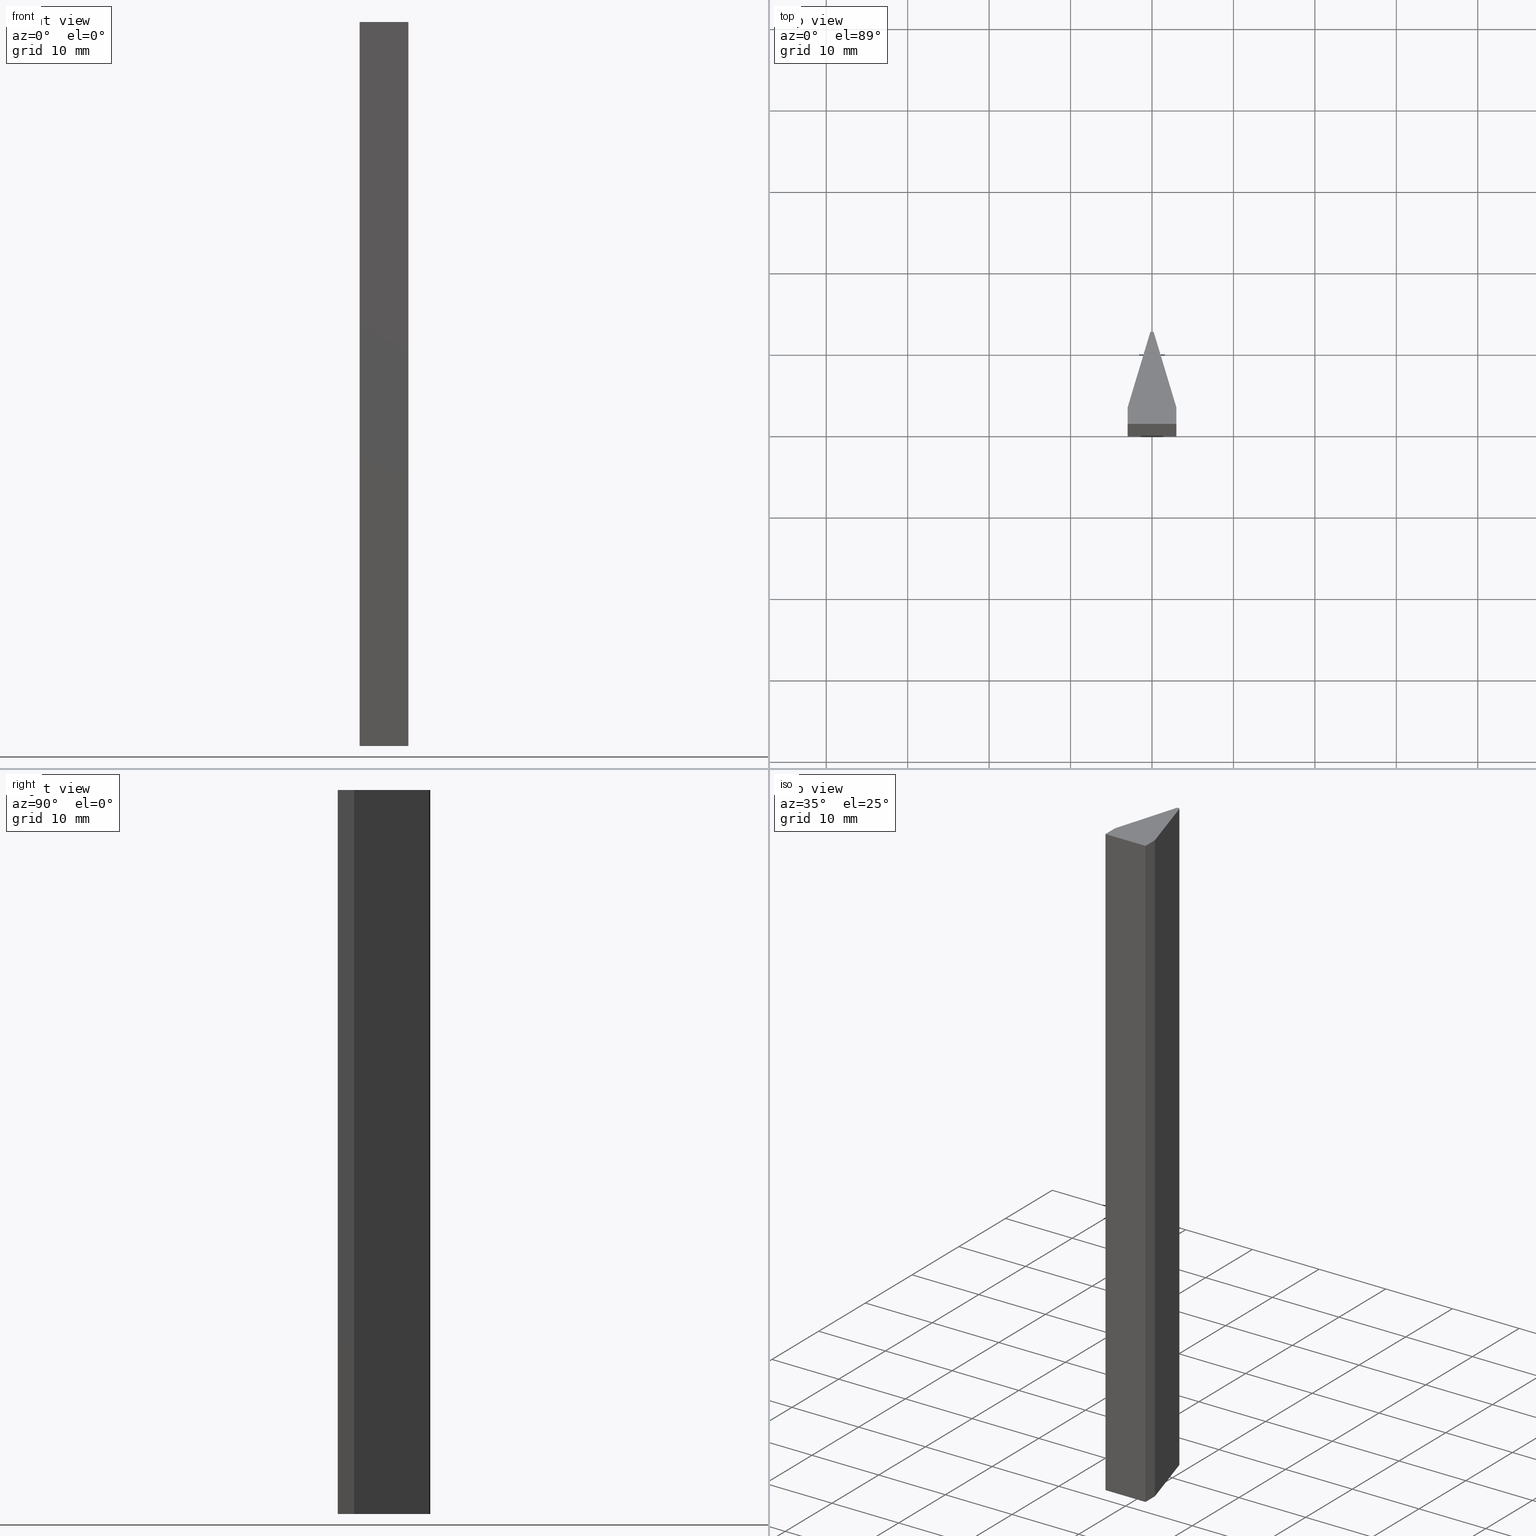
[diagram: canonical four-view strip — front | top / right | iso, engineering-drawing reading convention]
A machine part, canonical four-view strip (front | top / right | iso — engineering-drawing reading convention). The complete STEP part file that produces these views, byte-faithful:
ISO-10303-21;
HEADER;
/* Generated by software containing ST-Developer
 * from STEP Tools, Inc. (www.steptools.com) 
 */

FILE_DESCRIPTION(
/* description */ ('WKZ-0464'),
/* implementation_level */ '2;1');

FILE_NAME(
/* name */ 'O_3_01_06_07_00_WKZ-0464.stp',
/* time_stamp */ '2025-06-18T08:55:45+02:00',
/* author */ ('d.fischer'),
/* organization */ (''),
/* preprocessor_version */ 'ST-DEVELOPER v20',
/* originating_system */ 'Autodesk Inventor 2025',
/* authorisation */ '');

FILE_SCHEMA (('AUTOMOTIVE_DESIGN { 1 0 10303 214 3 1 1 }'));
ENDSEC;

DATA;
#10=MECHANICAL_DESIGN_GEOMETRIC_PRESENTATION_REPRESENTATION('',(#13),#260);
#11=SHAPE_REPRESENTATION_RELATIONSHIP('SRR','None',#267,#12);
#12=ADVANCED_BREP_SHAPE_REPRESENTATION('',(#14),#259);
#13=STYLED_ITEM('',(#276),#14);
#14=MANIFOLD_SOLID_BREP('Volumenk\X\F6rper1',#147);
#15=CYLINDRICAL_SURFACE('',#174,0.25);
#16=FACE_OUTER_BOUND('',#24,.T.);
#17=FACE_OUTER_BOUND('',#25,.T.);
#18=FACE_OUTER_BOUND('',#26,.T.);
#19=FACE_OUTER_BOUND('',#27,.T.);
#20=FACE_OUTER_BOUND('',#28,.T.);
#21=FACE_OUTER_BOUND('',#29,.T.);
#22=FACE_OUTER_BOUND('',#30,.T.);
#23=FACE_OUTER_BOUND('',#31,.T.);
#24=EDGE_LOOP('',(#96,#97,#98,#99,#100,#101));
#25=EDGE_LOOP('',(#102,#103,#104,#105));
#26=EDGE_LOOP('',(#106,#107,#108,#109));
#27=EDGE_LOOP('',(#110,#111,#112,#113));
#28=EDGE_LOOP('',(#114,#115,#116,#117));
#29=EDGE_LOOP('',(#118,#119,#120,#121));
#30=EDGE_LOOP('',(#122,#123,#124,#125));
#31=EDGE_LOOP('',(#126,#127,#128,#129,#130,#131));
#32=CIRCLE('',#171,0.25);
#33=CIRCLE('',#175,0.25);
#34=LINE('',#222,#50);
#35=LINE('',#224,#51);
#36=LINE('',#226,#52);
#37=LINE('',#230,#53);
#38=LINE('',#231,#54);
#39=LINE('',#234,#55);
#40=LINE('',#236,#56);
#41=LINE('',#237,#57);
#42=LINE('',#240,#58);
#43=LINE('',#241,#59);
#44=LINE('',#245,#60);
#45=LINE('',#248,#61);
#46=LINE('',#249,#62);
#47=LINE('',#252,#63);
#48=LINE('',#253,#64);
#49=LINE('',#255,#65);
#50=VECTOR('',#184,10.);
#51=VECTOR('',#185,10.);
#52=VECTOR('',#186,10.);
#53=VECTOR('',#189,10.);
#54=VECTOR('',#190,10.);
#55=VECTOR('',#193,10.);
#56=VECTOR('',#194,10.);
#57=VECTOR('',#195,10.);
#58=VECTOR('',#198,10.);
#59=VECTOR('',#199,10.);
#60=VECTOR('',#204,10.);
#61=VECTOR('',#207,10.);
#62=VECTOR('',#208,10.);
#63=VECTOR('',#211,10.);
#64=VECTOR('',#212,10.);
#65=VECTOR('',#215,10.);
#66=VERTEX_POINT('',#220);
#67=VERTEX_POINT('',#221);
#68=VERTEX_POINT('',#223);
#69=VERTEX_POINT('',#225);
#70=VERTEX_POINT('',#227);
#71=VERTEX_POINT('',#229);
#72=VERTEX_POINT('',#233);
#73=VERTEX_POINT('',#235);
#74=VERTEX_POINT('',#239);
#75=VERTEX_POINT('',#243);
#76=VERTEX_POINT('',#247);
#77=VERTEX_POINT('',#251);
#78=EDGE_CURVE('',#66,#67,#34,.T.);
#79=EDGE_CURVE('',#67,#68,#35,.T.);
#80=EDGE_CURVE('',#68,#69,#36,.T.);
#81=EDGE_CURVE('',#69,#70,#32,.T.);
#82=EDGE_CURVE('',#70,#71,#37,.T.);
#83=EDGE_CURVE('',#71,#66,#38,.T.);
#84=EDGE_CURVE('',#72,#67,#39,.T.);
#85=EDGE_CURVE('',#73,#72,#40,.T.);
#86=EDGE_CURVE('',#68,#73,#41,.T.);
#87=EDGE_CURVE('',#74,#73,#42,.T.);
#88=EDGE_CURVE('',#69,#74,#43,.T.);
#89=EDGE_CURVE('',#75,#74,#33,.T.);
#90=EDGE_CURVE('',#70,#75,#44,.T.);
#91=EDGE_CURVE('',#76,#75,#45,.T.);
#92=EDGE_CURVE('',#71,#76,#46,.T.);
#93=EDGE_CURVE('',#77,#76,#47,.T.);
#94=EDGE_CURVE('',#66,#77,#48,.T.);
#95=EDGE_CURVE('',#72,#77,#49,.T.);
#96=ORIENTED_EDGE('',*,*,#78,.T.);
#97=ORIENTED_EDGE('',*,*,#79,.T.);
#98=ORIENTED_EDGE('',*,*,#80,.T.);
#99=ORIENTED_EDGE('',*,*,#81,.T.);
#100=ORIENTED_EDGE('',*,*,#82,.T.);
#101=ORIENTED_EDGE('',*,*,#83,.T.);
#102=ORIENTED_EDGE('',*,*,#84,.F.);
#103=ORIENTED_EDGE('',*,*,#85,.F.);
#104=ORIENTED_EDGE('',*,*,#86,.F.);
#105=ORIENTED_EDGE('',*,*,#79,.F.);
#106=ORIENTED_EDGE('',*,*,#86,.T.);
#107=ORIENTED_EDGE('',*,*,#87,.F.);
#108=ORIENTED_EDGE('',*,*,#88,.F.);
#109=ORIENTED_EDGE('',*,*,#80,.F.);
#110=ORIENTED_EDGE('',*,*,#88,.T.);
#111=ORIENTED_EDGE('',*,*,#89,.F.);
#112=ORIENTED_EDGE('',*,*,#90,.F.);
#113=ORIENTED_EDGE('',*,*,#81,.F.);
#114=ORIENTED_EDGE('',*,*,#90,.T.);
#115=ORIENTED_EDGE('',*,*,#91,.F.);
#116=ORIENTED_EDGE('',*,*,#92,.F.);
#117=ORIENTED_EDGE('',*,*,#82,.F.);
#118=ORIENTED_EDGE('',*,*,#92,.T.);
#119=ORIENTED_EDGE('',*,*,#93,.F.);
#120=ORIENTED_EDGE('',*,*,#94,.F.);
#121=ORIENTED_EDGE('',*,*,#83,.F.);
#122=ORIENTED_EDGE('',*,*,#94,.T.);
#123=ORIENTED_EDGE('',*,*,#95,.F.);
#124=ORIENTED_EDGE('',*,*,#84,.T.);
#125=ORIENTED_EDGE('',*,*,#78,.F.);
#126=ORIENTED_EDGE('',*,*,#95,.T.);
#127=ORIENTED_EDGE('',*,*,#93,.T.);
#128=ORIENTED_EDGE('',*,*,#91,.T.);
#129=ORIENTED_EDGE('',*,*,#89,.T.);
#130=ORIENTED_EDGE('',*,*,#87,.T.);
#131=ORIENTED_EDGE('',*,*,#85,.T.);
#132=PLANE('',#170);
#133=PLANE('',#172);
#134=PLANE('',#173);
#135=PLANE('',#176);
#136=PLANE('',#177);
#137=PLANE('',#178);
#138=PLANE('',#179);
#139=ADVANCED_FACE('',(#16),#132,.F.);
#140=ADVANCED_FACE('',(#17),#133,.T.);
#141=ADVANCED_FACE('',(#18),#134,.T.);
#142=ADVANCED_FACE('',(#19),#15,.T.);
#143=ADVANCED_FACE('',(#20),#135,.T.);
#144=ADVANCED_FACE('',(#21),#136,.T.);
#145=ADVANCED_FACE('',(#22),#137,.T.);
#146=ADVANCED_FACE('',(#23),#138,.T.);
#147=CLOSED_SHELL('',(#139,#140,#141,#142,#143,#144,#145,#146));
#148=DERIVED_UNIT_ELEMENT(#151,1.);
#149=DERIVED_UNIT_ELEMENT(#262,-3.);
#150=DIMENSIONAL_EXPONENTS(0.,1.,0.,0.,0.,0.,0.);
#151=(
CONVERSION_BASED_UNIT('gram',#153)
MASS_UNIT()
NAMED_UNIT(#150)
);
#152=(
MASS_UNIT()
NAMED_UNIT(*)
SI_UNIT(.KILO.,.GRAM.)
);
#153=MASS_MEASURE_WITH_UNIT(MASS_MEASURE(0.001),#152);
#154=DERIVED_UNIT((#148,#149));
#155=MEASURE_REPRESENTATION_ITEM('density measure',
POSITIVE_RATIO_MEASURE(1.),#154);
#156=PROPERTY_DEFINITION_REPRESENTATION(#161,#158);
#157=PROPERTY_DEFINITION_REPRESENTATION(#162,#159);
#158=REPRESENTATION('material name',(#160),#259);
#159=REPRESENTATION('density',(#155),#259);
#160=DESCRIPTIVE_REPRESENTATION_ITEM('Generisch','Generisch');
#161=PROPERTY_DEFINITION('material property','material name',#269);
#162=PROPERTY_DEFINITION('material property','density of part',#269);
#163=DATE_TIME_ROLE('creation_date');
#164=APPLIED_DATE_AND_TIME_ASSIGNMENT(#165,#163,(#269));
#165=DATE_AND_TIME(#166,#167);
#166=CALENDAR_DATE(2024,14,11);
#167=LOCAL_TIME(0,0,0.,#168);
#168=COORDINATED_UNIVERSAL_TIME_OFFSET(0,0,.BEHIND.);
#169=AXIS2_PLACEMENT_3D('',#218,#180,#181);
#170=AXIS2_PLACEMENT_3D('',#219,#182,#183);
#171=AXIS2_PLACEMENT_3D('',#228,#187,#188);
#172=AXIS2_PLACEMENT_3D('',#232,#191,#192);
#173=AXIS2_PLACEMENT_3D('',#238,#196,#197);
#174=AXIS2_PLACEMENT_3D('',#242,#200,#201);
#175=AXIS2_PLACEMENT_3D('',#244,#202,#203);
#176=AXIS2_PLACEMENT_3D('',#246,#205,#206);
#177=AXIS2_PLACEMENT_3D('',#250,#209,#210);
#178=AXIS2_PLACEMENT_3D('',#254,#213,#214);
#179=AXIS2_PLACEMENT_3D('',#256,#216,#217);
#180=DIRECTION('axis',(0.,0.,1.));
#181=DIRECTION('refdir',(1.,0.,0.));
#182=DIRECTION('center_axis',(0.,0.,1.));
#183=DIRECTION('ref_axis',(1.,0.,0.));
#184=DIRECTION('',(-1.,-2.77555756156289E-16,0.));
#185=DIRECTION('',(-6.62819716194126E-15,1.,0.));
#186=DIRECTION('',(0.288209068636552,0.957567508197543,0.));
#187=DIRECTION('center_axis',(0.,0.,-1.));
#188=DIRECTION('ref_axis',(0.957567508197544,0.288209068636548,0.));
#189=DIRECTION('',(0.288209068636556,-0.957567508197542,0.));
#190=DIRECTION('',(-1.10469952699021E-15,-1.,0.));
#191=DIRECTION('center_axis',(-1.,-6.62819716194126E-15,0.));
#192=DIRECTION('ref_axis',(6.62819716194126E-15,-1.,0.));
#193=DIRECTION('',(0.,0.,-1.));
#194=DIRECTION('',(6.62819716194126E-15,-1.,0.));
#195=DIRECTION('',(0.,0.,1.));
#196=DIRECTION('center_axis',(-0.957567508197543,0.288209068636552,0.));
#197=DIRECTION('ref_axis',(-0.288209068636552,-0.957567508197543,0.));
#198=DIRECTION('',(-0.288209068636552,-0.957567508197543,0.));
#199=DIRECTION('',(0.,0.,1.));
#200=DIRECTION('center_axis',(0.,0.,1.));
#201=DIRECTION('ref_axis',(0.957567508197544,0.288209068636548,0.));
#202=DIRECTION('center_axis',(0.,0.,1.));
#203=DIRECTION('ref_axis',(0.957567508197544,0.288209068636548,0.));
#204=DIRECTION('',(0.,0.,1.));
#205=DIRECTION('center_axis',(0.957567508197542,0.288209068636556,0.));
#206=DIRECTION('ref_axis',(-0.288209068636556,0.957567508197542,0.));
#207=DIRECTION('',(-0.288209068636556,0.957567508197542,0.));
#208=DIRECTION('',(0.,0.,1.));
#209=DIRECTION('center_axis',(1.,-1.10469952699021E-15,0.));
#210=DIRECTION('ref_axis',(1.10469952699021E-15,1.,0.));
#211=DIRECTION('',(1.10469952699021E-15,1.,0.));
#212=DIRECTION('',(0.,0.,1.));
#213=DIRECTION('center_axis',(2.77555756156289E-16,-1.,0.));
#214=DIRECTION('ref_axis',(1.,2.77555756156289E-16,0.));
#215=DIRECTION('',(1.,2.77555756156289E-16,0.));
#216=DIRECTION('center_axis',(0.,0.,1.));
#217=DIRECTION('ref_axis',(1.,0.,0.));
#218=CARTESIAN_POINT('',(0.,0.,0.));
#219=CARTESIAN_POINT('Origin',(9.71445146547012E-15,5.68,-44.45));
#220=CARTESIAN_POINT('',(3.00000000000002,-2.22044604925031E-15,-44.45));
#221=CARTESIAN_POINT('',(-2.99999999999999,-3.88578058618805E-15,-44.45));
#222=CARTESIAN_POINT('',(-2.99999999999999,-3.88578058618805E-15,-44.45));
#223=CARTESIAN_POINT('',(-3.,2.00999999999999,-44.45));
#224=CARTESIAN_POINT('',(-3.,2.00999999999999,-44.45));
#225=CARTESIAN_POINT('',(-0.239391877049385,11.1820522671591,-44.45));
#226=CARTESIAN_POINT('',(-0.239391877049385,11.1820522671591,-44.45));
#227=CARTESIAN_POINT('',(0.239391877049374,11.1820522671591,-44.45));
#228=CARTESIAN_POINT('Origin',(-5.55111512312578E-15,11.11,-44.45));
#229=CARTESIAN_POINT('',(3.00000000000002,2.01,-44.45));
#230=CARTESIAN_POINT('',(3.00000000000002,2.01,-44.45));
#231=CARTESIAN_POINT('',(3.00000000000002,-2.22044604925031E-15,-44.45));
#232=CARTESIAN_POINT('Origin',(-3.,2.00999999999999,0.));
#233=CARTESIAN_POINT('',(-2.99999999999999,-3.88578058618805E-15,44.45));
#234=CARTESIAN_POINT('',(-2.99999999999999,-3.88578058618805E-15,0.));
#235=CARTESIAN_POINT('',(-3.,2.00999999999999,44.45));
#236=CARTESIAN_POINT('',(-3.,2.00999999999999,44.45));
#237=CARTESIAN_POINT('',(-3.,2.00999999999999,0.));
#238=CARTESIAN_POINT('Origin',(-0.239391877049385,11.1820522671591,0.));
#239=CARTESIAN_POINT('',(-0.239391877049385,11.1820522671591,44.45));
#240=CARTESIAN_POINT('',(-0.239391877049385,11.1820522671591,44.45));
#241=CARTESIAN_POINT('',(-0.239391877049385,11.1820522671591,0.));
#242=CARTESIAN_POINT('Origin',(-5.55111512312578E-15,11.11,0.));
#243=CARTESIAN_POINT('',(0.239391877049374,11.1820522671591,44.45));
#244=CARTESIAN_POINT('Origin',(-5.55111512312578E-15,11.11,44.45));
#245=CARTESIAN_POINT('',(0.239391877049374,11.1820522671591,0.));
#246=CARTESIAN_POINT('Origin',(3.00000000000002,2.01,0.));
#247=CARTESIAN_POINT('',(3.00000000000002,2.01,44.45));
#248=CARTESIAN_POINT('',(3.00000000000002,2.01,44.45));
#249=CARTESIAN_POINT('',(3.00000000000002,2.01,0.));
#250=CARTESIAN_POINT('Origin',(3.00000000000002,-2.22044604925031E-15,0.));
#251=CARTESIAN_POINT('',(3.00000000000002,-2.22044604925031E-15,44.45));
#252=CARTESIAN_POINT('',(3.00000000000002,-2.22044604925031E-15,44.45));
#253=CARTESIAN_POINT('',(3.00000000000002,-2.22044604925031E-15,0.));
#254=CARTESIAN_POINT('Origin',(-2.99999999999999,-3.88578058618805E-15,
0.));
#255=CARTESIAN_POINT('',(-2.99999999999999,-3.88578058618805E-15,44.45));
#256=CARTESIAN_POINT('Origin',(9.71445146547012E-15,5.68,44.45));
#257=UNCERTAINTY_MEASURE_WITH_UNIT(LENGTH_MEASURE(0.01),#261,
'DISTANCE_ACCURACY_VALUE',
'Maximum model space distance between geometric entities at asserted c
onnectivities');
#258=UNCERTAINTY_MEASURE_WITH_UNIT(LENGTH_MEASURE(0.01),#261,
'DISTANCE_ACCURACY_VALUE',
'Maximum model space distance between geometric entities at asserted c
onnectivities');
#259=(
GEOMETRIC_REPRESENTATION_CONTEXT(3)
GLOBAL_UNCERTAINTY_ASSIGNED_CONTEXT((#257))
GLOBAL_UNIT_ASSIGNED_CONTEXT((#261,#263,#264))
REPRESENTATION_CONTEXT('','3D')
);
#260=(
GEOMETRIC_REPRESENTATION_CONTEXT(3)
GLOBAL_UNCERTAINTY_ASSIGNED_CONTEXT((#258))
GLOBAL_UNIT_ASSIGNED_CONTEXT((#261,#263,#264))
REPRESENTATION_CONTEXT('','3D')
);
#261=(
LENGTH_UNIT()
NAMED_UNIT(*)
SI_UNIT(.MILLI.,.METRE.)
);
#262=(
LENGTH_UNIT()
NAMED_UNIT(*)
SI_UNIT(.CENTI.,.METRE.)
);
#263=(
NAMED_UNIT(*)
PLANE_ANGLE_UNIT()
SI_UNIT($,.RADIAN.)
);
#264=(
NAMED_UNIT(*)
SI_UNIT($,.STERADIAN.)
SOLID_ANGLE_UNIT()
);
#265=SHAPE_DEFINITION_REPRESENTATION(#266,#267);
#266=PRODUCT_DEFINITION_SHAPE('',$,#269);
#267=SHAPE_REPRESENTATION('',(#169),#259);
#268=PRODUCT_DEFINITION_CONTEXT('part definition',#273,'design');
#269=PRODUCT_DEFINITION('O_3_01_06_07_00_WKZ-0464',
'O_3_01_06_07_00_WKZ-0464',#270,#268);
#270=PRODUCT_DEFINITION_FORMATION('',$,#275);
#271=PRODUCT_RELATED_PRODUCT_CATEGORY('O_3_01_06_07_00_WKZ-0464',
'O_3_01_06_07_00_WKZ-0464',(#275));
#272=APPLICATION_PROTOCOL_DEFINITION('international standard',
'automotive_design',2009,#273);
#273=APPLICATION_CONTEXT(
'Core Data for Automotive Mechanical Design Process');
#274=PRODUCT_CONTEXT('part definition',#273,'mechanical');
#275=PRODUCT('O_3_01_06_07_00_WKZ-0464','O_3_01_06_07_00_WKZ-0464',
'WKZ-0464',(#274));
#276=PRESENTATION_STYLE_ASSIGNMENT((#277));
#277=SURFACE_STYLE_USAGE(.BOTH.,#280);
#278=SURFACE_STYLE_RENDERING_WITH_PROPERTIES($,#284,(#279));
#279=SURFACE_STYLE_TRANSPARENT(0.);
#280=SURFACE_SIDE_STYLE('',(#281,#278));
#281=SURFACE_STYLE_FILL_AREA(#282);
#282=FILL_AREA_STYLE('',(#283));
#283=FILL_AREA_STYLE_COLOUR('',#284);
#284=COLOUR_RGB('',0.749019607843137,0.749019607843137,0.749019607843137);
ENDSEC;
END-ISO-10303-21;
